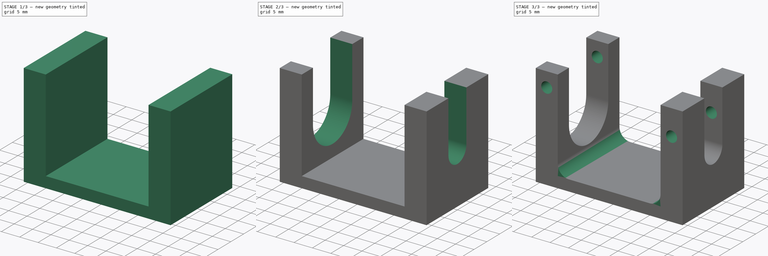
[diagram: build sequence overview — one tinted view per stage of 3, left to right]
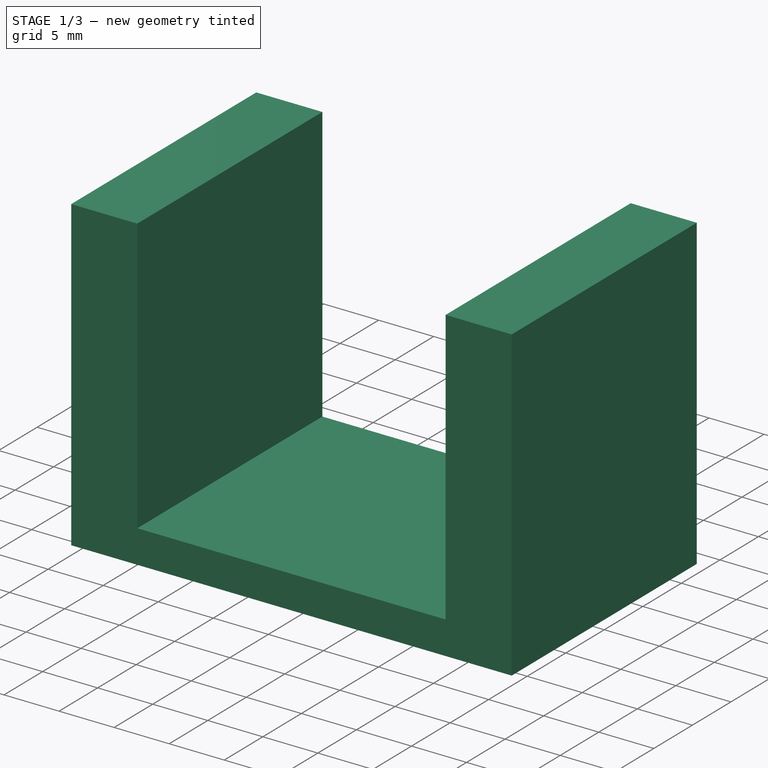
[diagram: stage 1 of 3 — iso view after this stage's code; geometry added in this stage tinted green]
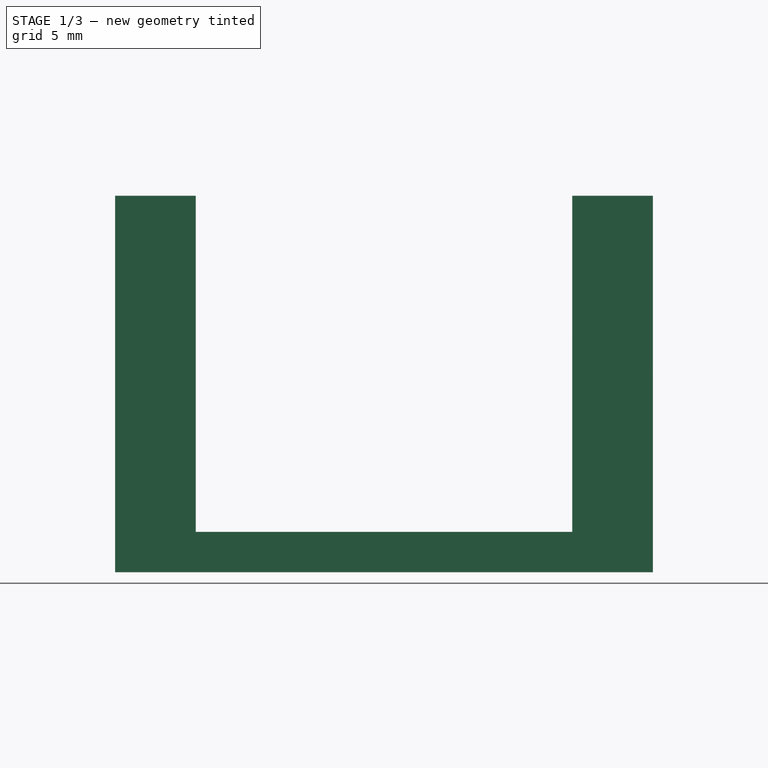
[diagram: stage 1 of 3 — front view after this stage's code; geometry added in this stage tinted green]
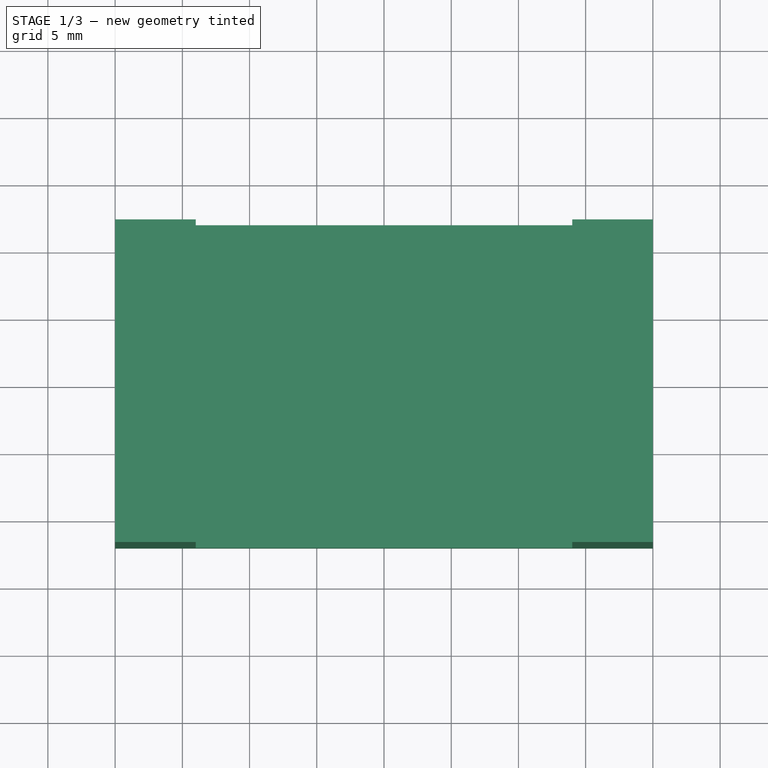
[diagram: stage 1 of 3 — top view after this stage's code; geometry added in this stage tinted green]
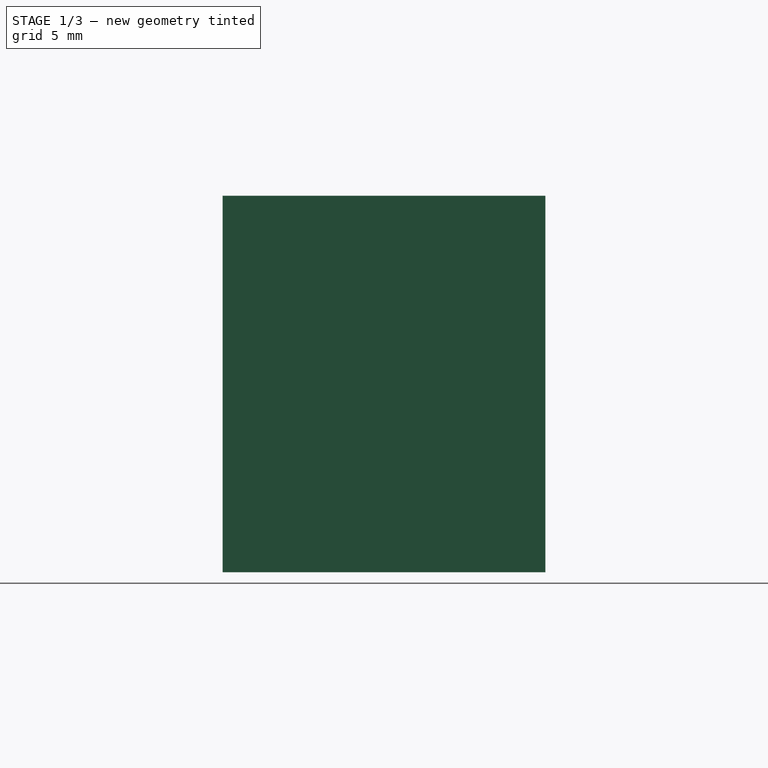
[diagram: stage 1 of 3 — right view after this stage's code; geometry added in this stage tinted green]
FCSTD DOCUMENT  (FreeCAD 0.18R16093 (Git))
Label: cnc_jig_solder_1
License: All rights reserved
LicenseURL: http://en.wikipedia.org/wiki/All_rights_reserved
objects: Sketcher::SketchObject×5, PartDesign::Pocket×3, PartDesign::Pad×2, PartDesign::Fillet×1, PartDesign::Body×1
note: 17 computed .brp shape members not serialized (recipe doc carries the construction recipe); baked Part::Feature solids carry a one-line shape summary decoded from their .brp

FEATURE [Sketcher::SketchObject] Sketch
  MapMode = 5
  Support = -> [XY_Plane]
  sketch-geometry (4):
    g0: LineSegment StartX=-20 StartY=12 StartZ=0 EndX=20 EndY=12 EndZ=0
    g1: LineSegment StartX=20 StartY=12 StartZ=0 EndX=20 EndY=-12 EndZ=0
    g2: LineSegment StartX=20 StartY=-12 StartZ=0 EndX=-20 EndY=-12 EndZ=0
    g3: LineSegment StartX=-20 StartY=-12 StartZ=0 EndX=-20 EndY=12 EndZ=0
  constraints (12):
    c: Coincident(g0,g1)
    c: Coincident(g1,g2)
    c: Coincident(g2,g3)
    c: Coincident(g3,g0)
    c: Horizontal(g0)
    c: Horizontal(g2)
    c: Vertical(g1)
    c: Vertical(g3)
    c: DistanceX(g1) = 20
    c: DistanceY(g1) = -12
    c: DistanceX(g0) = -20
    c: DistanceY(g0) = 12
FEATURE [PartDesign::Pad] Pad
  Length = 3
  Length2 = 100
  Profile = -> Sketch
  Type = 0
FEATURE [Sketcher::SketchObject] Sketch001
  ExternalGeometry = -> [Pad]
  MapMode = 5
  Placement = pos=(0,0,3) rot=(0,0,1;0rad)
  Support = -> [Pad]
  sketch-geometry (8):
    g0: LineSegment StartX=-20 StartY=12 StartZ=0 EndX=-14 EndY=12 EndZ=0
    g1: LineSegment StartX=-14 StartY=12 StartZ=0 EndX=-14 EndY=-12 EndZ=0
    g2: LineSegment StartX=-14 StartY=-12 StartZ=0 EndX=-20 EndY=-12 EndZ=0
    g3: LineSegment StartX=-20 StartY=-12 StartZ=0 EndX=-20 EndY=12 EndZ=0
    g4: LineSegment StartX=20 StartY=12 StartZ=0 EndX=14 EndY=12 EndZ=0
    g5: LineSegment StartX=14 StartY=12 StartZ=0 EndX=14 EndY=-12 EndZ=0
    g6: LineSegment StartX=14 StartY=-12 StartZ=0 EndX=20 EndY=-12 EndZ=0
    g7: LineSegment StartX=20 StartY=-12 StartZ=0 EndX=20 EndY=12 EndZ=0
  constraints (22):
    c: Coincident(g0,g1)
    c: Coincident(g1,g2)
    c: Coincident(g2,g3)
    c: Coincident(g3,g0)
    c: Horizontal(g0)
    c: Horizontal(g2)
    c: Vertical(g1)
    c: Vertical(g3)
    c: Coincident(g4,g5)
    c: Coincident(g5,g6)
    c: Coincident(g6,g7)
    c: Coincident(g7,g4)
    c: Horizontal(g4)
    c: Horizontal(g6)
    c: Vertical(g5)
    c: Vertical(g7)
    c: DistanceX(g2,g2) = 6
    c: DistanceX(g6,g6) = 6
    c: Coincident(g2,g-4)
    c: DistanceY(g1,g1) = 24
    c: DistanceY(g7,g7) = 24
    c: Coincident(g6,g-5)
FEATURE [PartDesign::Pad] Pad001
  BaseFeature = -> Pad
  Length = 25
  Length2 = 100
  Profile = -> Sketch001
  Type = 0
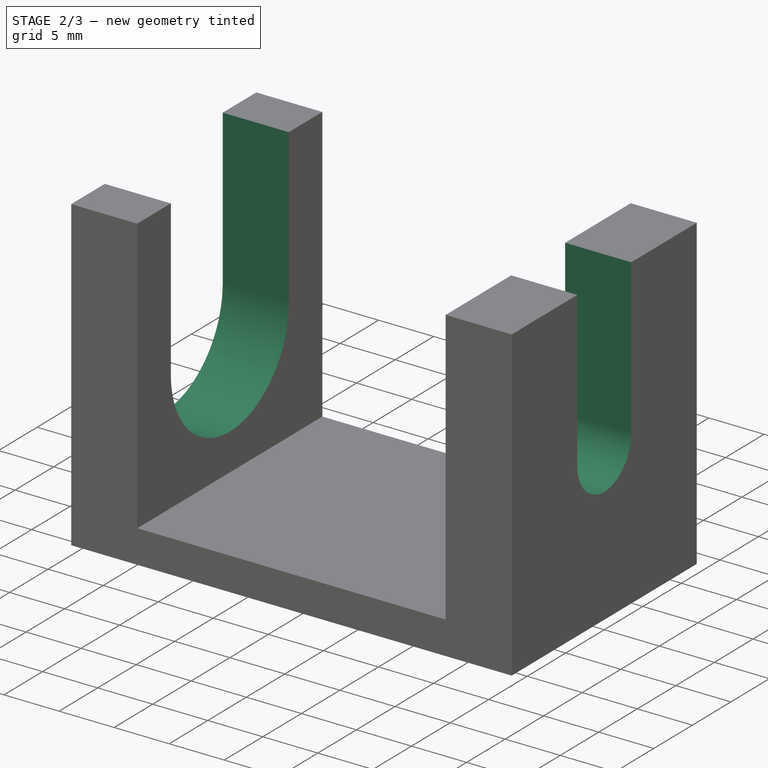
[diagram: stage 2 of 3 — iso view after this stage's code; geometry added in this stage tinted green]
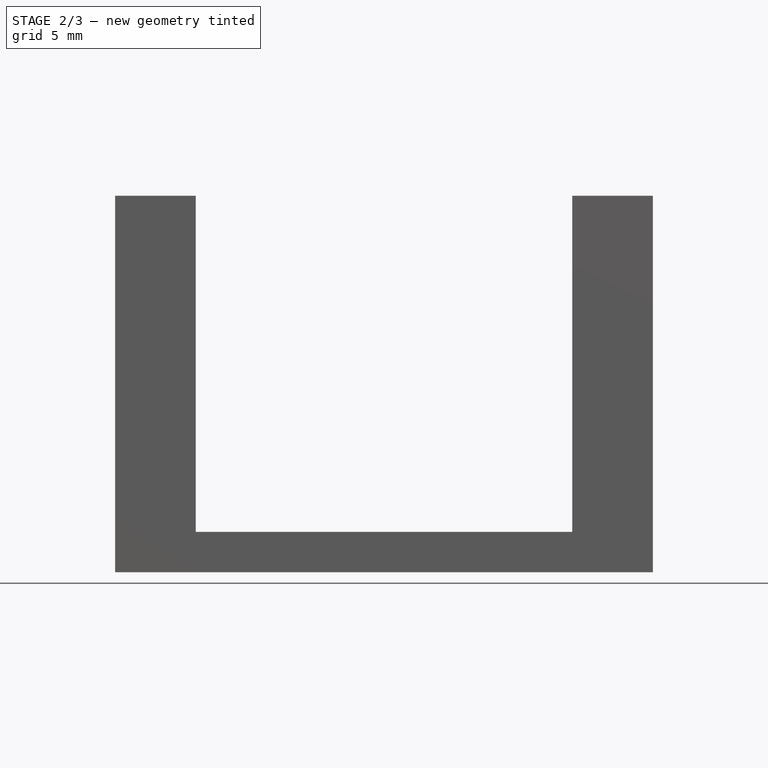
[diagram: stage 2 of 3 — front view after this stage's code; geometry added in this stage tinted green]
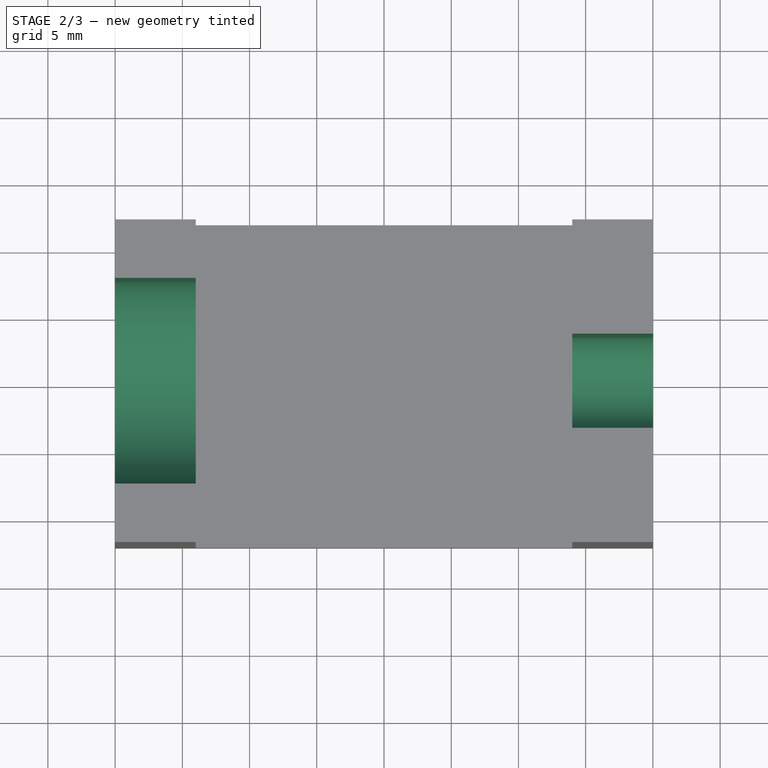
[diagram: stage 2 of 3 — top view after this stage's code; geometry added in this stage tinted green]
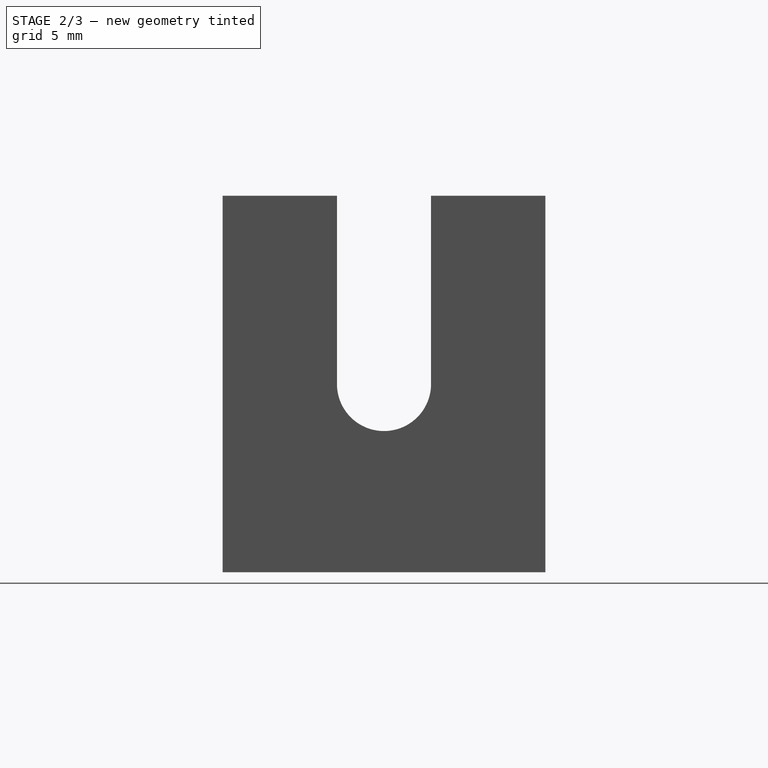
[diagram: stage 2 of 3 — right view after this stage's code; geometry added in this stage tinted green]
FEATURE [Sketcher::SketchObject] Sketch002
  ExternalGeometry = -> [Pad001]
  MapMode = 5
  Placement = pos=(20,0,0) rot=(0.57735,0.57735,0.57735;2.0944rad)
  Support = -> [Pad001]
  sketch-geometry (4):
    g0: LineSegment StartX=-3.5 StartY=28 StartZ=0 EndX=3.5 EndY=28 EndZ=0
    g1: LineSegment StartX=3.5 StartY=28 StartZ=0 EndX=3.5 EndY=14 EndZ=0
    g2: LineSegment StartX=-3.5 StartY=14 StartZ=0 EndX=-3.5 EndY=28 EndZ=0
    g3: ArcOfCircle CenterX=-3.46273e-11 CenterY=14 CenterZ=0 NormalX=0 NormalY=0 NormalZ=1 AngleXU=0 Radius=3.5 StartAngle=3.1416 EndAngle=6.28318
  constraints (11):
    c: Coincident(g0,g1)
    c: Coincident(g2,g0)
    c: Vertical(g1)
    c: Vertical(g2)
    c: PointOnObject(g0,g-3)
    c: DistanceX(g0,g0) = 7
    c: Symmetric(g0,g0,g-2)
    c: Radius(g3) = 3.5
    c: Coincident(g2,g3)
    c: Coincident(g3,g1)
    c: DistanceY(g-1,g3) = 14
FEATURE [PartDesign::Pocket] Pocket
  BaseFeature = -> Pad001
  Length = 6
  Length2 = 100
  Profile = -> Sketch002
  Type = 0
FEATURE [Sketcher::SketchObject] Sketch004
  ExternalGeometry = -> [Pocket]
  MapMode = 5
  Placement = pos=(-20,0,0) rot=(0.57735,-0.57735,-0.57735;2.0944rad)
  Support = -> [Pocket]
  sketch-geometry (4):
    g0: LineSegment StartX=-7.65 StartY=28 StartZ=0 EndX=7.65 EndY=28 EndZ=0
    g1: LineSegment StartX=7.65 StartY=28 StartZ=0 EndX=7.65 EndY=14 EndZ=0
    g2: LineSegment StartX=-7.65 StartY=14 StartZ=0 EndX=-7.65 EndY=28 EndZ=0
    g3: ArcOfCircle CenterX=-2e-16 CenterY=14 CenterZ=0 NormalX=0 NormalY=0 NormalZ=1 AngleXU=0 Radius=7.65 StartAngle=3.14159 EndAngle=6.28319
  constraints (11):
    c: Coincident(g0,g1)
    c: Coincident(g2,g0)
    c: Vertical(g1)
    c: Vertical(g2)
    c: PointOnObject(g0,g-3)
    c: Symmetric(g0,g0,g-2)
    c: DistanceX(g0,g0) = 15.3
    c: Radius(g3) = 7.65
    c: Coincident(g3,g2)
    c: Coincident(g3,g1)
    c: DistanceY(g-1,g3) = 14
FEATURE [PartDesign::Pocket] Pocket001
  BaseFeature = -> Pocket
  Length = 6
  Length2 = 100
  Profile = -> Sketch004
  Type = 0
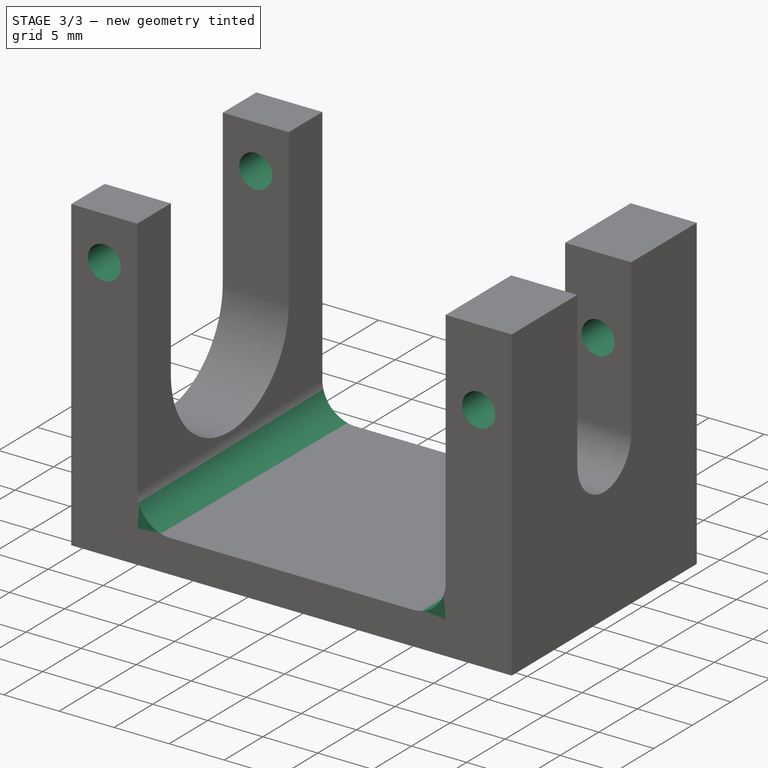
[diagram: stage 3 of 3 — iso view after this stage's code; geometry added in this stage tinted green]
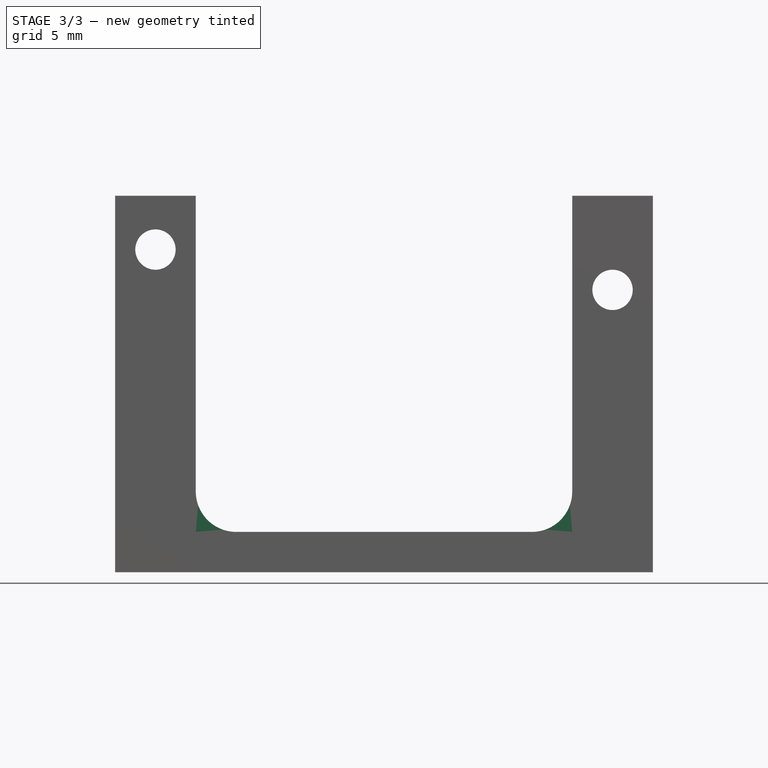
[diagram: stage 3 of 3 — front view after this stage's code; geometry added in this stage tinted green]
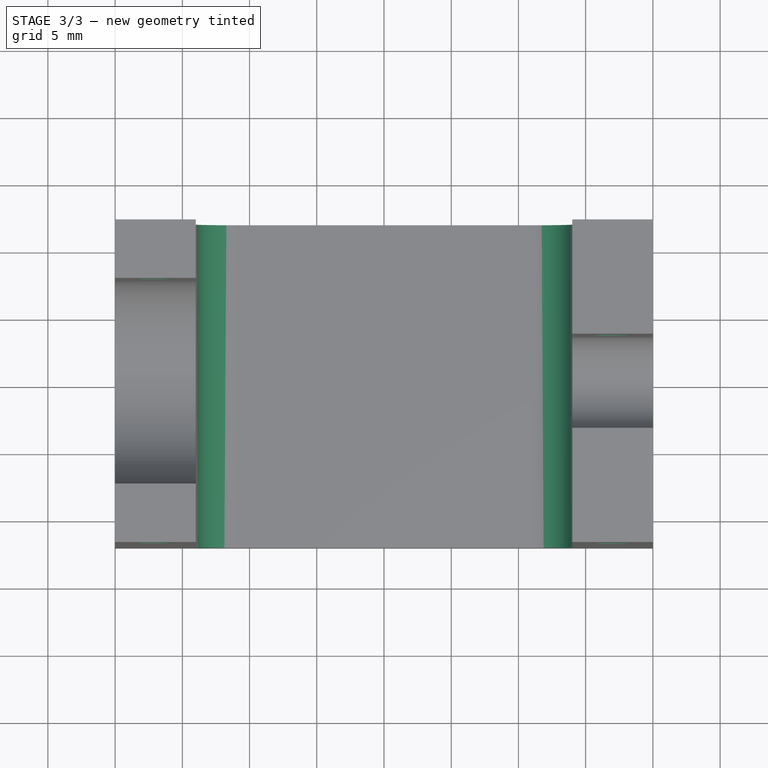
[diagram: stage 3 of 3 — top view after this stage's code; geometry added in this stage tinted green]
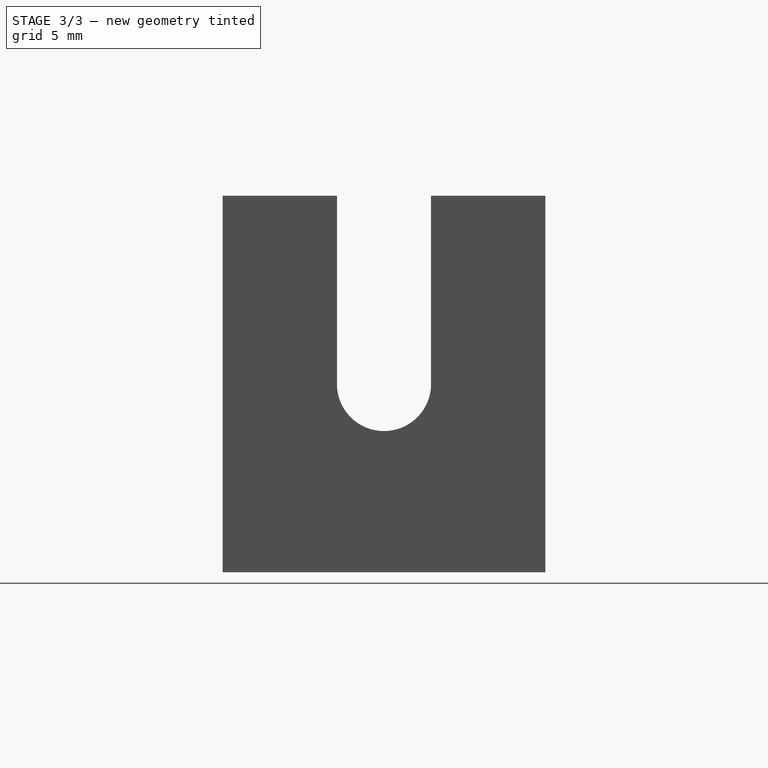
[diagram: stage 3 of 3 — right view after this stage's code; geometry added in this stage tinted green]
FEATURE [Sketcher::SketchObject] Sketch005
  MapMode = 5
  Placement = pos=(0,-12,0) rot=(1,0,0;1.5708rad)
  Support = -> [Pocket001]
  sketch-geometry (2):
    g0: Circle CenterX=17 CenterY=21 CenterZ=0 NormalX=0 NormalY=0 NormalZ=1 AngleXU=0 Radius=1.5
    g1: Circle CenterX=-17 CenterY=24 CenterZ=0 NormalX=0 NormalY=0 NormalZ=1 AngleXU=0 Radius=1.5
  constraints (6):
    c: Radius(g0) = 1.5
    c: Radius(g1) = 1.5
    c: DistanceX(g1,g-1) = 17
    c: DistanceY(g-1,g1) = 24
    c: DistanceX(g-1,g0) = 17
    c: DistanceY(g-1,g0) = 21
FEATURE [PartDesign::Pocket] Pocket002
  BaseFeature = -> Pocket001
  Length = 20
  Length2 = 100
  Profile = -> Sketch005
  Type = 1
FEATURE [PartDesign::Fillet] Fillet
  Base = -> Pocket002 [Edge21,Edge22]
  BaseFeature = -> Pocket002
  Radius = 3
FEATURE [PartDesign::Body] Body
  Group = -> [Sketch,Pad,Sketch001,Pad001,Sketch002,Pocket,Sketch004,Pocket001,Sketch005,Pocket002,Fillet]
  Origin = -> Origin
  Tip = -> Fillet
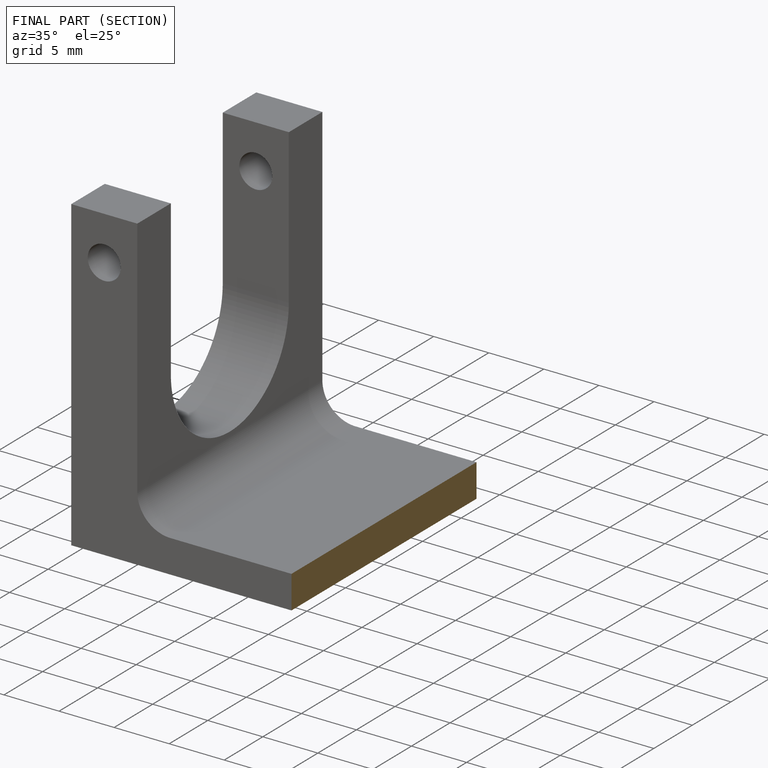
[diagram: finished part — half-section view (interior)]
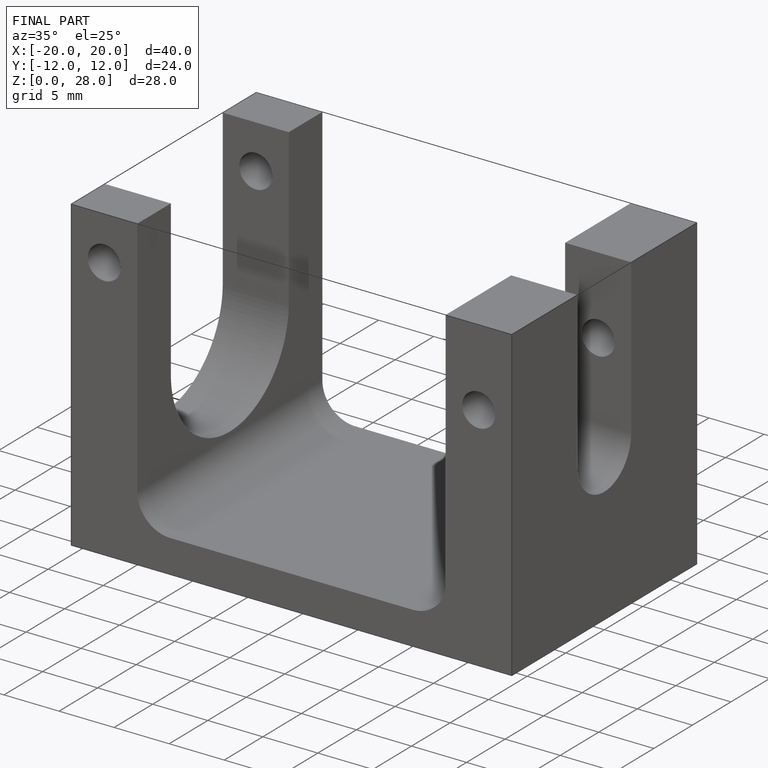
[diagram: finished part — iso view with bounding-box wireframe]
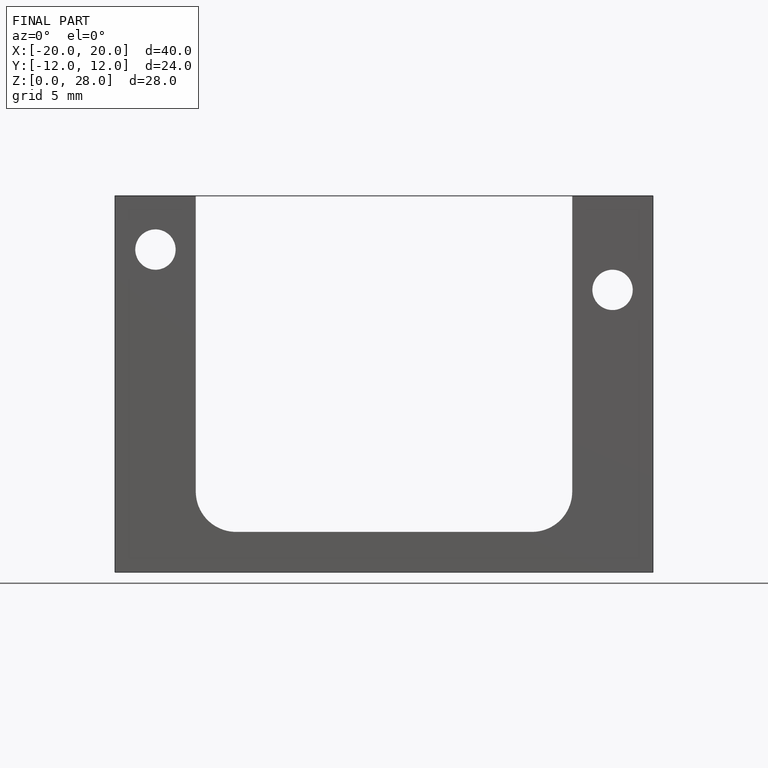
[diagram: finished part — front view with bounding-box wireframe]
